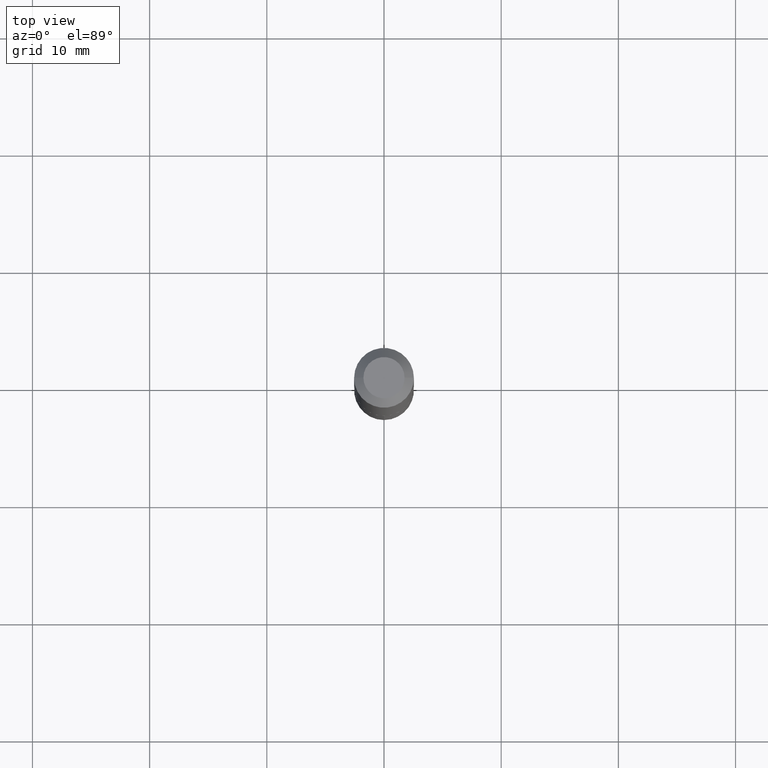
[diagram: clean part render]
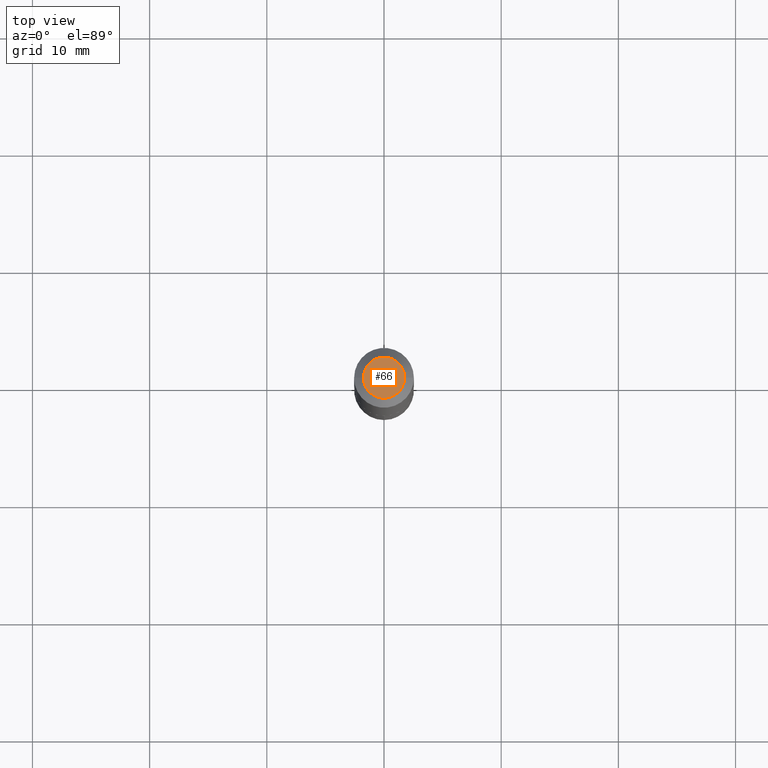
[diagram: same view with one face highlighted and labeled with its STEP entity id]
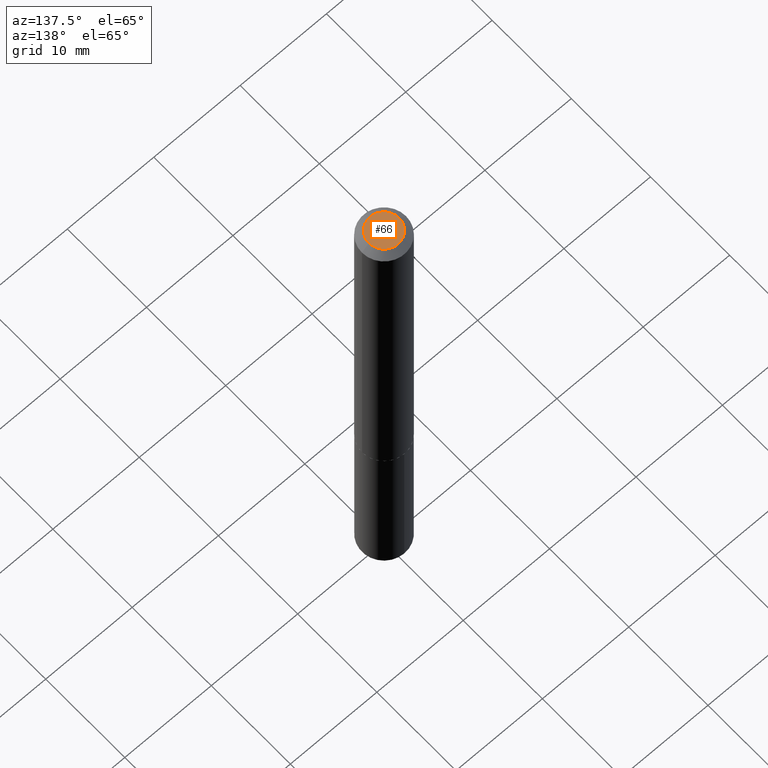
[diagram: same view with one face highlighted and labeled with its STEP entity id]
A machine part, top view. The second image highlights one B-rep face of the part: STEP entity #66.
A second angle (auxiliary view) of the same face is appended — the face is thin or edge-on in the first view.
In plain terms, the highlighted planar face has unit normal (0, -0, -1).
Its self-contained STEP definition (entity closure, byte-faithful):
#1 = VERTEX_POINT ( 'NONE', #225 ) ;
#26 = DIRECTION ( 'NONE',  ( -2.445468806185136597E-29, 3.491481338843145583E-15, 1.000000000000000000 ) ) ;
#30 = CARTESIAN_POINT ( 'NONE',  ( -0.06915000000000000313, 5.374262650814288063E-16, -1.904325772674491171E-17 ) ) ;
#47 = CARTESIAN_POINT ( 'NONE',  ( 2.328484636944501653E-46, -3.324458949184897582E-32, -9.521628863370673213E-18 ) ) ;
#56 = EDGE_CURVE ( 'NONE', #1, #278, #145, .T. ) ;
#66 = ADVANCED_FACE ( 'NONE', ( #170 ), #355, .F. ) ;
#72 = CARTESIAN_POINT ( 'NONE',  ( 4.656969273889003305E-46, -6.648917898369795165E-32, -1.904325772674134643E-17 ) ) ;
#78 = DIRECTION ( 'NONE',  ( 2.438088387897960049E-29, -3.491481338843145188E-15, -1.000000000000000000 ) ) ;
#145 = CIRCLE ( 'NONE', #208, 0.06915000000000000313 ) ;
#152 = ORIENTED_EDGE ( 'NONE', *, *, #56, .T. ) ;
#169 = AXIS2_PLACEMENT_3D ( 'NONE', #72, #256, #344 ) ;
#170 = FACE_OUTER_BOUND ( 'NONE', #314, .T. ) ;
#201 = CIRCLE ( 'NONE', #169, 0.06915000000000000313 ) ;
#208 = AXIS2_PLACEMENT_3D ( 'NONE', #259, #26, #380 ) ;
#214 = ORIENTED_EDGE ( 'NONE', *, *, #299, .T. ) ;
#225 = CARTESIAN_POINT ( 'NONE',  ( 0.06915000000000000313, -6.361531136805062102E-16, -1.904325772673743294E-17 ) ) ;
#255 = AXIS2_PLACEMENT_3D ( 'NONE', #47, #78, #320 ) ;
#256 = DIRECTION ( 'NONE',  ( -2.445468806185136597E-29, 3.491481338843145583E-15, 1.000000000000000000 ) ) ;
#259 = CARTESIAN_POINT ( 'NONE',  ( 4.656969273889003305E-46, -6.648917898369795165E-32, -1.904325772674134643E-17 ) ) ;
#278 = VERTEX_POINT ( 'NONE', #30 ) ;
#299 = EDGE_CURVE ( 'NONE', #278, #1, #201, .T. ) ;
#314 = EDGE_LOOP ( 'NONE', ( #214, #152 ) ) ;
#320 = DIRECTION ( 'NONE',  ( -1.000000000000000000, 6.982962677686265922E-15, -4.876176775795935793E-29 ) ) ;
#344 = DIRECTION ( 'NONE',  ( 1.000000000000000000, -6.982962677686266711E-15, 4.874009259114479341E-29 ) ) ;
#355 = PLANE ( 'NONE',  #255 ) ;
#380 = DIRECTION ( 'NONE',  ( 1.000000000000000000, -6.982962677686266711E-15, 4.874009259114479341E-29 ) ) ;